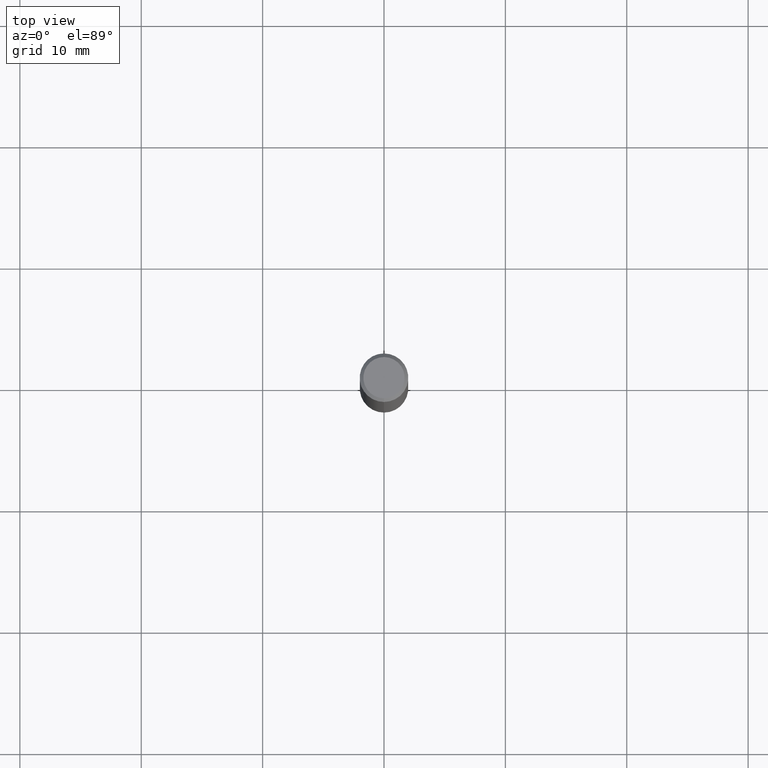
[diagram: clean part render]
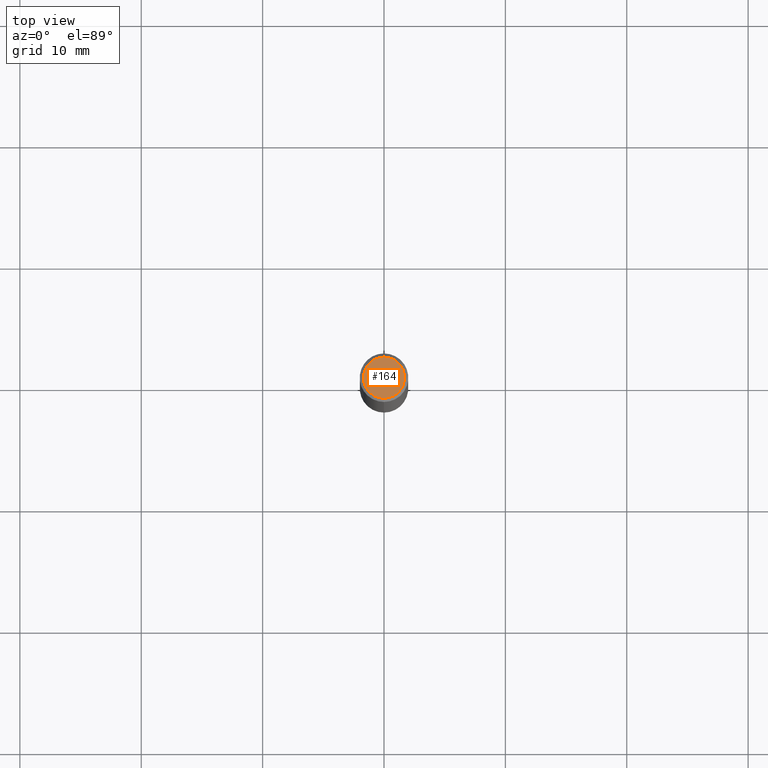
[diagram: same view with one face highlighted and labeled with its STEP entity id]
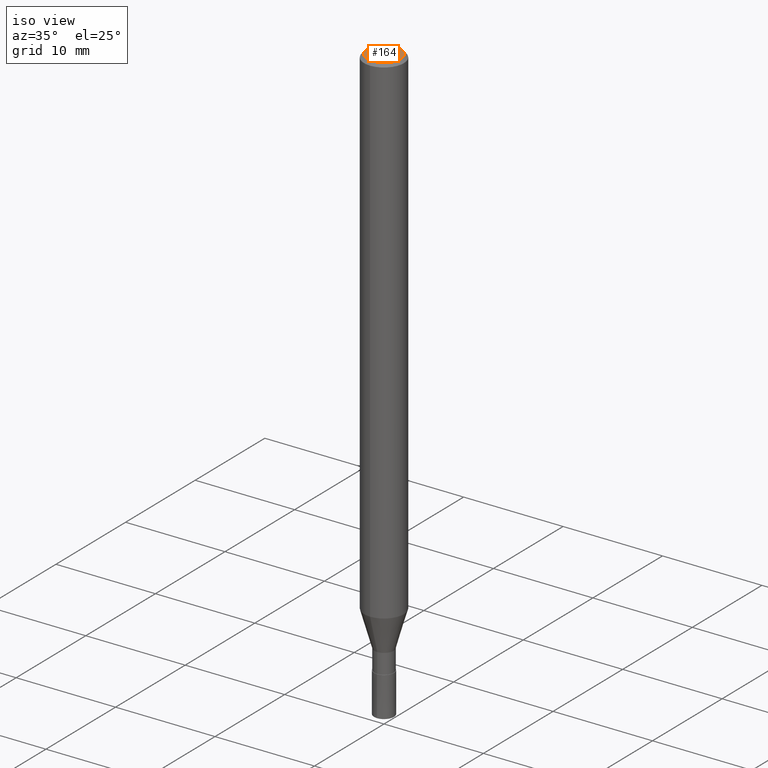
[diagram: same view with one face highlighted and labeled with its STEP entity id]
A machine part, top view. The second image highlights one B-rep face of the part: STEP entity #164.
A second angle (iso view) of the same face is appended — the face is thin or edge-on in the first view.
In plain terms, the highlighted planar face has unit normal (-0, 0, 1).
Its self-contained STEP definition (entity closure, byte-faithful):
#102=VERTEX_POINT('',#240);
#116=EDGE_CURVE('',#168,#102,#258,.T.);
#150=EDGE_CURVE('',#102,#168,#295,.T.);
#164=ADVANCED_FACE('',(#310),#311,.T.);
#168=VERTEX_POINT('',#315);
#240=CARTESIAN_POINT('',(0.0,1.7,0.0));
#258=CIRCLE('',#410,1.7);
#295=CIRCLE('',#457,1.7);
#310=FACE_OUTER_BOUND('',#478,.T.);
#311=PLANE('',#479);
#315=CARTESIAN_POINT('',(2.08183080149804E-016,-1.7,0.0));
#410=AXIS2_PLACEMENT_3D('',#578,#579,#580);
#457=AXIS2_PLACEMENT_3D('',#620,#621,#622);
#478=EDGE_LOOP('',(#639,#640));
#479=AXIS2_PLACEMENT_3D('',#641,#642,#643);
#578=CARTESIAN_POINT('',(0.0,0.0,0.0));
#579=DIRECTION('',(0.0,0.0,-1.0));
#580=DIRECTION('',(0.0,1.0,0.0));
#620=CARTESIAN_POINT('',(0.0,0.0,0.0));
#621=DIRECTION('',(0.0,0.0,-1.0));
#622=DIRECTION('',(0.0,1.0,0.0));
#639=ORIENTED_EDGE('',*,*,#150,.F.);
#640=ORIENTED_EDGE('',*,*,#116,.F.);
#641=CARTESIAN_POINT('',(0.0,0.85,0.0));
#642=DIRECTION('',(-0.0,0.0,1.0));
#643=DIRECTION('',(0.0,-1.0,0.0));